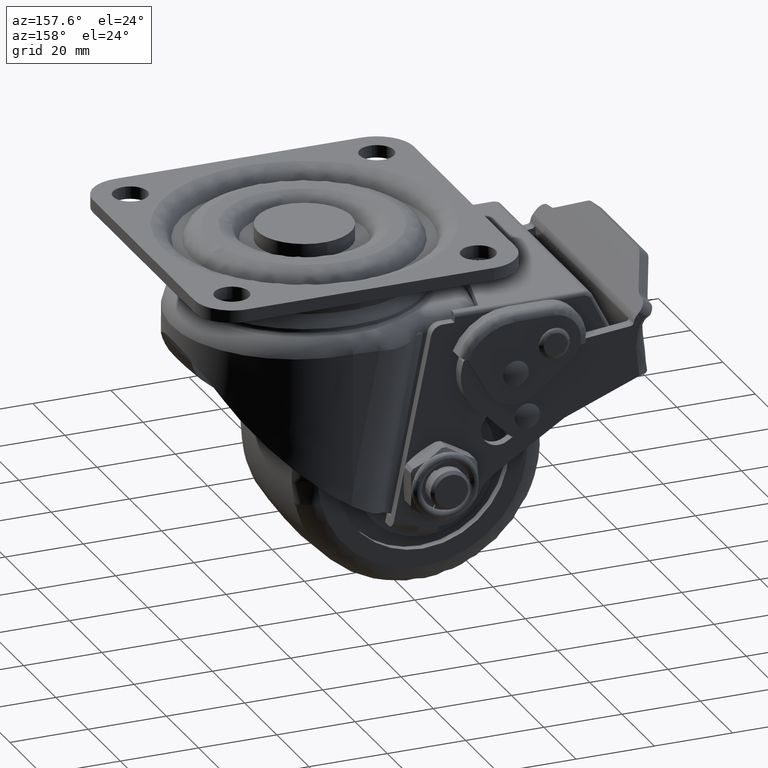
[diagram: clean part render]
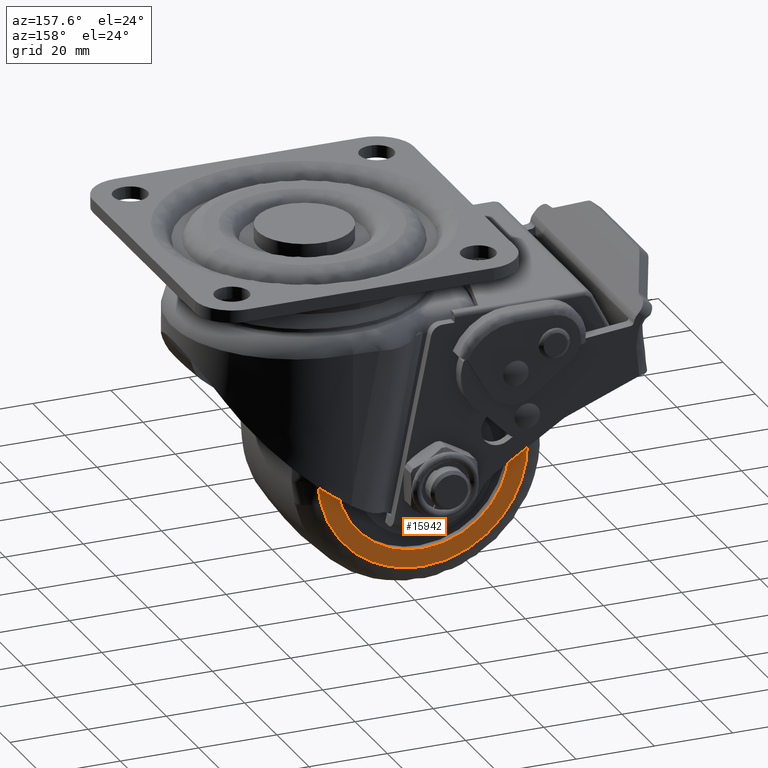
[diagram: same view with one face highlighted and labeled with its STEP entity id]
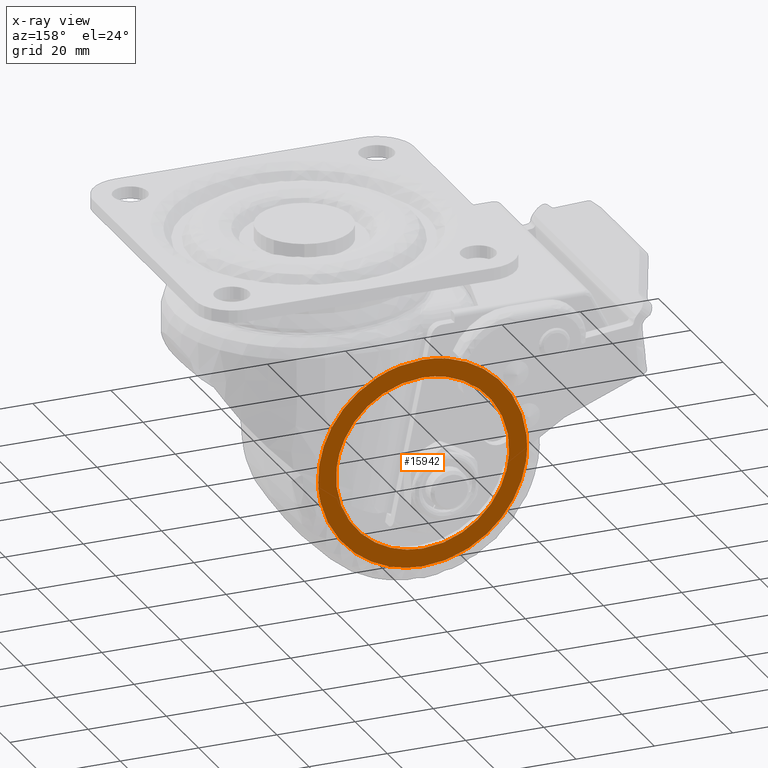
[diagram: x-ray of the same camera — body ghosted, the highlighted face saturated]
A machine part, auxiliary view. The second image highlights one B-rep face of the part: STEP entity #15942.
The next image is the same camera in x-ray: the body ghosted, the highlighted face saturated — about 0% of this face is hidden behind the body in this view.
In plain terms, the highlighted face is a freeform B-spline surface patch.
Its self-contained STEP definition (entity closure, byte-faithful):
#14804=CARTESIAN_POINT('',(21.965376251422651,20.0,-54.889120766492169));
#14805=VERTEX_POINT('',#14804);
#14811=CARTESIAN_POINT('',(0.0,20.0,-79.620001000000002));
#14812=VERTEX_POINT('',#14811);
#14813=CARTESIAN_POINT('',(21.965376251422640,19.999999999999996,-54.889120766492177));
#14814=CARTESIAN_POINT('',(22.120001000000006,19.999999999999996,-56.189981693323205));
#14815=CARTESIAN_POINT('',(22.120000999999998,20.0,-57.500000000000000));
#14816=CARTESIAN_POINT('',(22.120000999999998,20.0,-79.620001000000002));
#14817=CARTESIAN_POINT('',(0.0,20.0,-79.620001000000002));
#14825=(BOUNDED_CURVE()B_SPLINE_CURVE(2,(#14813,#14814,#14815,#14816,#14817),.UNSPECIFIED.,.F.,.U.)B_SPLINE_CURVE_WITH_KNOTS((3,2,3),(0.229562767084191,0.250000000000000,0.500000000000000),.UNSPECIFIED.)CURVE()GEOMETRIC_REPRESENTATION_ITEM()RATIONAL_B_SPLINE_CURVE((0.956027329595059,0.976056292270594,1.0,0.707106781186547,1.0))REPRESENTATION_ITEM(''));
#14826=EDGE_CURVE('',#14805,#14812,#14825,.T.);
#14828=CARTESIAN_POINT('',(-22.078743182670099,20.0,-58.850386505281612));
#14829=VERTEX_POINT('',#14828);
#14830=CARTESIAN_POINT('',(0.0,20.0,-79.620001000000002));
#14831=CARTESIAN_POINT('',(-20.808425986555566,19.999999999999996,-79.620001000000002));
#14832=CARTESIAN_POINT('',(-22.078743182670099,20.000000000000004,-58.850386505281605));
#14840=(BOUNDED_CURVE()B_SPLINE_CURVE(2,(#14830,#14831,#14832),.UNSPECIFIED.,.F.,.U.)B_SPLINE_CURVE_WITH_KNOTS((3,3),(0.500000000000000,0.739333018903358),.UNSPECIFIED.)CURVE()GEOMETRIC_REPRESENTATION_ITEM()RATIONAL_B_SPLINE_CURVE((1.0,0.719603926900219,0.976072163109375))REPRESENTATION_ITEM(''));
#14841=EDGE_CURVE('',#14812,#14829,#14840,.T.);
#14919=CARTESIAN_POINT('',(0.0,20.0,-35.379999000000012));
#14920=VERTEX_POINT('',#14919);
#14921=CARTESIAN_POINT('',(-22.078743182670099,20.000000000000004,-58.850386505281605));
#14922=CARTESIAN_POINT('',(-22.120001000000002,20.000000000000004,-58.175823519414116));
#14923=CARTESIAN_POINT('',(-22.120000999999998,20.0,-57.500000000000000));
#14924=CARTESIAN_POINT('',(-22.120000999999998,20.0,-35.379998999999998));
#14925=CARTESIAN_POINT('',(0.0,20.0,-35.379999000000012));
#14933=(BOUNDED_CURVE()B_SPLINE_CURVE(2,(#14921,#14922,#14923,#14924,#14925),.UNSPECIFIED.,.F.,.U.)B_SPLINE_CURVE_WITH_KNOTS((3,2,3),(0.739333018903358,0.750000000000000,1.0),.UNSPECIFIED.)CURVE()GEOMETRIC_REPRESENTATION_ITEM()RATIONAL_B_SPLINE_CURVE((0.976072163109375,0.987502854286329,1.0,0.707106781186547,1.0))REPRESENTATION_ITEM(''));
#14934=EDGE_CURVE('',#14829,#14920,#14933,.T.);
#14936=CARTESIAN_POINT('',(0.0,20.0,-35.379999000000012));
#14937=CARTESIAN_POINT('',(19.646455769463113,20.000000000000004,-35.379999000000005));
#14938=CARTESIAN_POINT('',(21.965376251422651,20.000000000000004,-54.889120766492169));
#14946=(BOUNDED_CURVE()B_SPLINE_CURVE(2,(#14936,#14937,#14938),.UNSPECIFIED.,.F.,.U.)B_SPLINE_CURVE_WITH_KNOTS((3,3),(0.0,0.229562767084191),.UNSPECIFIED.)CURVE()GEOMETRIC_REPRESENTATION_ITEM()RATIONAL_B_SPLINE_CURVE((1.0,0.731050488915954,0.956027329595059))REPRESENTATION_ITEM(''));
#14947=EDGE_CURVE('',#14920,#14805,#14946,.T.);
#15352=CARTESIAN_POINT('',(26.099642445744760,20.0,-63.233795155570057));
#15353=VERTEX_POINT('',#15352);
#15354=CARTESIAN_POINT('',(0.0,20.0,-84.222046000000205));
#15355=VERTEX_POINT('',#15354);
#15356=CARTESIAN_POINT('',(26.099642445744760,20.000000000000004,-63.233795155570064));
#15357=CARTESIAN_POINT('',(21.488761993979548,20.000000000000004,-84.222046000000205));
#15358=CARTESIAN_POINT('',(0.0,20.0,-84.222046000000205));
#15366=(BOUNDED_CURVE()B_SPLINE_CURVE(2,(#15356,#15357,#15358),.UNSPECIFIED.,.F.,.U.)B_SPLINE_CURVE_WITH_KNOTS((3,3),(0.286726879782087,0.500000000000000),.UNSPECIFIED.)CURVE()GEOMETRIC_REPRESENTATION_ITEM()RATIONAL_B_SPLINE_CURVE((0.926585904682077,0.750134997331948,1.0))REPRESENTATION_ITEM(''));
#15367=EDGE_CURVE('',#15353,#15355,#15366,.T.);
#15431=CARTESIAN_POINT('',(-26.587126849337160,20.0,-54.818129637863223));
#15432=VERTEX_POINT('',#15431);
#15446=CARTESIAN_POINT('',(0.0,20.0,-84.222046000000205));
#15447=CARTESIAN_POINT('',(-26.722046000000198,19.999999999999996,-84.222046000000205));
#15448=CARTESIAN_POINT('',(-26.722046000000201,20.0,-57.500000000000000));
#15449=CARTESIAN_POINT('',(-26.722046000000205,20.0,-56.155671071935096));
#15450=CARTESIAN_POINT('',(-26.587126849337167,20.0,-54.818129637863223));
#15458=(BOUNDED_CURVE()B_SPLINE_CURVE(2,(#15446,#15447,#15448,#15449,#15450),.UNSPECIFIED.,.F.,.U.)B_SPLINE_CURVE_WITH_KNOTS((3,2,3),(0.500000000000000,0.750000000000000,0.767423441090455),.UNSPECIFIED.)CURVE()GEOMETRIC_REPRESENTATION_ITEM()RATIONAL_B_SPLINE_CURVE((1.0,0.707106781186548,1.0,0.979587169024840,0.962019632113561))REPRESENTATION_ITEM(''));
#15459=EDGE_CURVE('',#15355,#15432,#15458,.T.);
#15493=CARTESIAN_POINT('',(0.0,20.0,-30.777953999999799));
#15494=VERTEX_POINT('',#15493);
#15495=CARTESIAN_POINT('',(0.0,20.0,-30.777953999999799));
#15496=CARTESIAN_POINT('',(26.722046000000198,19.999999999999996,-30.777953999999806));
#15497=CARTESIAN_POINT('',(26.722046000000201,20.0,-57.500000000000000));
#15498=CARTESIAN_POINT('',(26.722046000000198,20.0,-60.400678535763426));
#15499=CARTESIAN_POINT('',(26.099642445744752,20.0,-63.233795155570071));
#15507=(BOUNDED_CURVE()B_SPLINE_CURVE(2,(#15495,#15496,#15497,#15498,#15499),.UNSPECIFIED.,.F.,.U.)B_SPLINE_CURVE_WITH_KNOTS((3,2,3),(0.0,0.250000000000000,0.286726879782087),.UNSPECIFIED.)CURVE()GEOMETRIC_REPRESENTATION_ITEM()RATIONAL_B_SPLINE_CURVE((1.0,0.707106781186548,1.0,0.956971783854599,0.926585904682077))REPRESENTATION_ITEM(''));
#15508=EDGE_CURVE('',#15494,#15353,#15507,.T.);
#15510=CARTESIAN_POINT('',(-26.587126849337164,20.000000000000004,-54.818129637863237));
#15511=CARTESIAN_POINT('',(-24.162170024071376,19.999999999999993,-30.777953999999813));
#15512=CARTESIAN_POINT('',(0.0,20.0,-30.777953999999799));
#15520=(BOUNDED_CURVE()B_SPLINE_CURVE(2,(#15510,#15511,#15512),.UNSPECIFIED.,.F.,.U.)B_SPLINE_CURVE_WITH_KNOTS((3,3),(0.767423441090456,1.0),.UNSPECIFIED.)CURVE()GEOMETRIC_REPRESENTATION_ITEM()RATIONAL_B_SPLINE_CURVE((0.962019632113560,0.727519612161708,1.0))REPRESENTATION_ITEM(''));
#15521=EDGE_CURVE('',#15432,#15494,#15520,.T.);
#15925=CARTESIAN_POINT('',(-29.389592584056420,20.0,-28.108421708184810));
#15926=CARTESIAN_POINT('',(-29.389592584056420,20.0,-86.891579725297447));
#15927=CARTESIAN_POINT('',(29.384698868626689,20.0,-28.108421708184810));
#15928=CARTESIAN_POINT('',(29.384698868626689,20.0,-86.891579725297447));
#15929=B_SPLINE_SURFACE_WITH_KNOTS('',1,1,((#15925,#15927),(#15926,#15928)),.UNSPECIFIED.,.F.,.F.,.U.,(2,2),(2,2),(0.0,58.783158017112648),(0.0,58.774291452683102),.UNSPECIFIED.);
#15930=ORIENTED_EDGE('',*,*,#15508,.T.);
#15931=ORIENTED_EDGE('',*,*,#15367,.T.);
#15932=ORIENTED_EDGE('',*,*,#15459,.T.);
#15933=ORIENTED_EDGE('',*,*,#15521,.T.);
#15934=EDGE_LOOP('',(#15930,#15931,#15932,#15933));
#15935=FACE_OUTER_BOUND('',#15934,.T.);
#15936=ORIENTED_EDGE('',*,*,#14841,.F.);
#15937=ORIENTED_EDGE('',*,*,#14826,.F.);
#15938=ORIENTED_EDGE('',*,*,#14947,.F.);
#15939=ORIENTED_EDGE('',*,*,#14934,.F.);
#15940=EDGE_LOOP('',(#15936,#15937,#15938,#15939));
#15941=FACE_BOUND('',#15940,.T.);
#15942=ADVANCED_FACE('',(#15935,#15941),#15929,.F.);